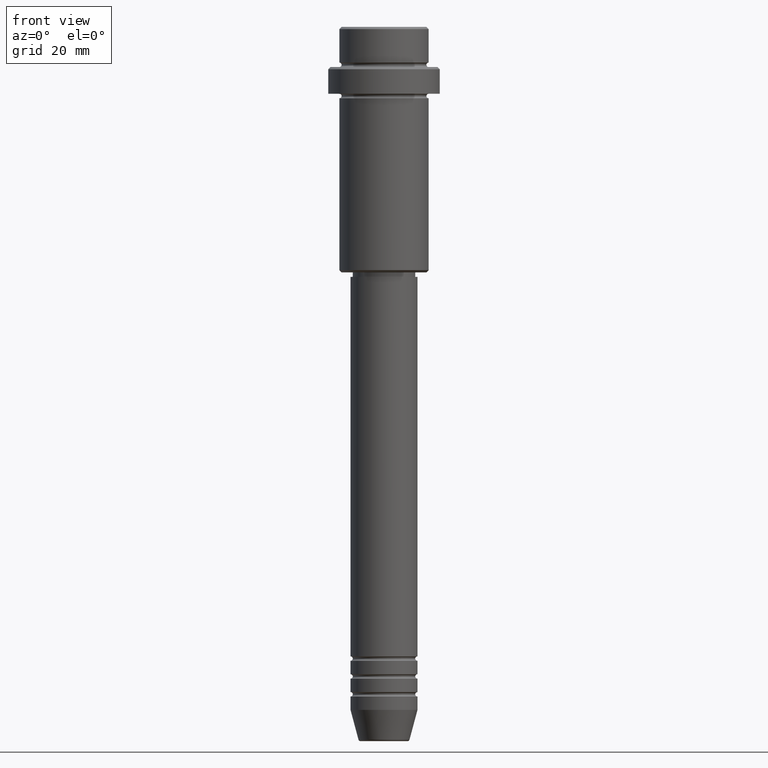
[diagram: clean part render]
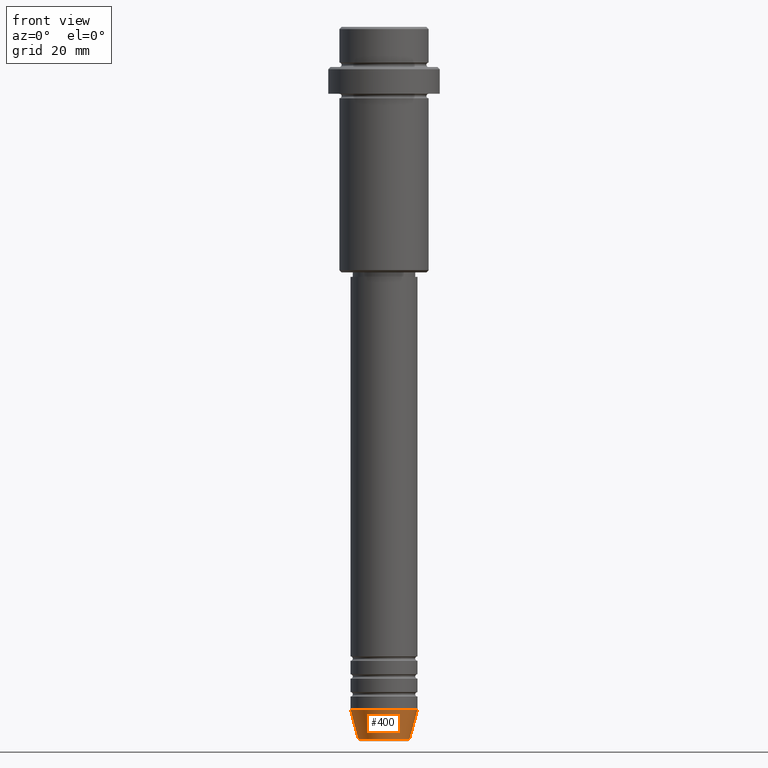
[diagram: same view with one face highlighted and labeled with its STEP entity id]
A machine part, front view. The second image highlights one B-rep face of the part: STEP entity #400.
In plain terms, the highlighted conical surface has half-angle 15 deg.
Its self-contained STEP definition (entity closure, byte-faithful):
#25 = ORIENTED_EDGE ( 'NONE', *, *, #625, .F. ) ;
#39 = DIRECTION ( 'NONE',  ( 1.000000000000000000, 0.000000000000000000, 0.000000000000000000 ) ) ;
#42 = VERTEX_POINT ( 'NONE', #396 ) ;
#43 = CARTESIAN_POINT ( 'NONE',  ( -5.723655072137197486, 8.097153428560739859E-16, -159.6294095225512137 ) ) ;
#101 = DIRECTION ( 'NONE',  ( 1.000000000000000000, 0.000000000000000000, 0.000000000000000000 ) ) ;
#131 = DIRECTION ( 'NONE',  ( 0.2588190451025213501, 0.000000000000000000, 0.9659258262890680902 ) ) ;
#255 = ORIENTED_EDGE ( 'NONE', *, *, #632, .T. ) ;
#263 = ORIENTED_EDGE ( 'NONE', *, *, #1385, .F. ) ;
#301 = CIRCLE ( 'NONE', #600, 7.500000000000000000 ) ;
#303 = CONICAL_SURFACE ( 'NONE', #1248, 7.500000000000000000, 0.2617993877991500740 ) ;
#322 = AXIS2_PLACEMENT_3D ( 'NONE', #1080, #658, #101 ) ;
#356 = CARTESIAN_POINT ( 'NONE',  ( 0.000000000000000000, 0.000000000000000000, -153.0000000000000000 ) ) ;
#361 = CARTESIAN_POINT ( 'NONE',  ( 7.500000000000000000, 0.000000000000000000, -153.0000000000000000 ) ) ;
#382 = DIRECTION ( 'NONE',  ( 1.000000000000000000, 0.000000000000000000, 0.000000000000000000 ) ) ;
#394 = VECTOR ( 'NONE', #1002, 1000.000000000000000 ) ;
#396 = CARTESIAN_POINT ( 'NONE',  ( 5.723655072137197486, 0.000000000000000000, -159.6294095225512137 ) ) ;
#400 = ADVANCED_FACE ( 'NONE', ( #596 ), #303, .T. ) ;
#416 = VECTOR ( 'NONE', #131, 1000.000000000000000 ) ;
#486 = CIRCLE ( 'NONE', #322, 5.723655072137197486 ) ;
#562 = ORIENTED_EDGE ( 'NONE', *, *, #735, .T. ) ;
#596 = FACE_OUTER_BOUND ( 'NONE', #1148, .T. ) ;
#600 = AXIS2_PLACEMENT_3D ( 'NONE', #833, #962, #382 ) ;
#625 = EDGE_CURVE ( 'NONE', #798, #704, #1193, .T. ) ;
#632 = EDGE_CURVE ( 'NONE', #798, #42, #486, .T. ) ;
#658 = DIRECTION ( 'NONE',  ( -0.000000000000000000, -0.000000000000000000, 1.000000000000000000 ) ) ;
#664 = LINE ( 'NONE', #760, #416 ) ;
#704 = VERTEX_POINT ( 'NONE', #1088 ) ;
#735 = EDGE_CURVE ( 'NONE', #42, #774, #664, .T. ) ;
#760 = CARTESIAN_POINT ( 'NONE',  ( 7.500000000000000000, 0.000000000000000000, -153.0000000000000000 ) ) ;
#774 = VERTEX_POINT ( 'NONE', #361 ) ;
#798 = VERTEX_POINT ( 'NONE', #43 ) ;
#833 = CARTESIAN_POINT ( 'NONE',  ( 0.000000000000000000, 0.000000000000000000, -153.0000000000000000 ) ) ;
#962 = DIRECTION ( 'NONE',  ( -0.000000000000000000, -0.000000000000000000, 1.000000000000000000 ) ) ;
#1002 = DIRECTION ( 'NONE',  ( -0.2588190451025213501, 3.169619151431772337E-17, 0.9659258262890680902 ) ) ;
#1080 = CARTESIAN_POINT ( 'NONE',  ( 0.000000000000000000, 0.000000000000000000, -159.6294095225512137 ) ) ;
#1088 = CARTESIAN_POINT ( 'NONE',  ( -7.500000000000000000, 9.184850993605147944E-16, -153.0000000000000000 ) ) ;
#1093 = CARTESIAN_POINT ( 'NONE',  ( -7.500000000000000000, 9.184850993605147944E-16, -153.0000000000000000 ) ) ;
#1148 = EDGE_LOOP ( 'NONE', ( #25, #255, #562, #263 ) ) ;
#1193 = LINE ( 'NONE', #1093, #394 ) ;
#1248 = AXIS2_PLACEMENT_3D ( 'NONE', #356, #1250, #39 ) ;
#1250 = DIRECTION ( 'NONE',  ( -0.000000000000000000, -0.000000000000000000, 1.000000000000000000 ) ) ;
#1385 = EDGE_CURVE ( 'NONE', #704, #774, #301, .T. ) ;